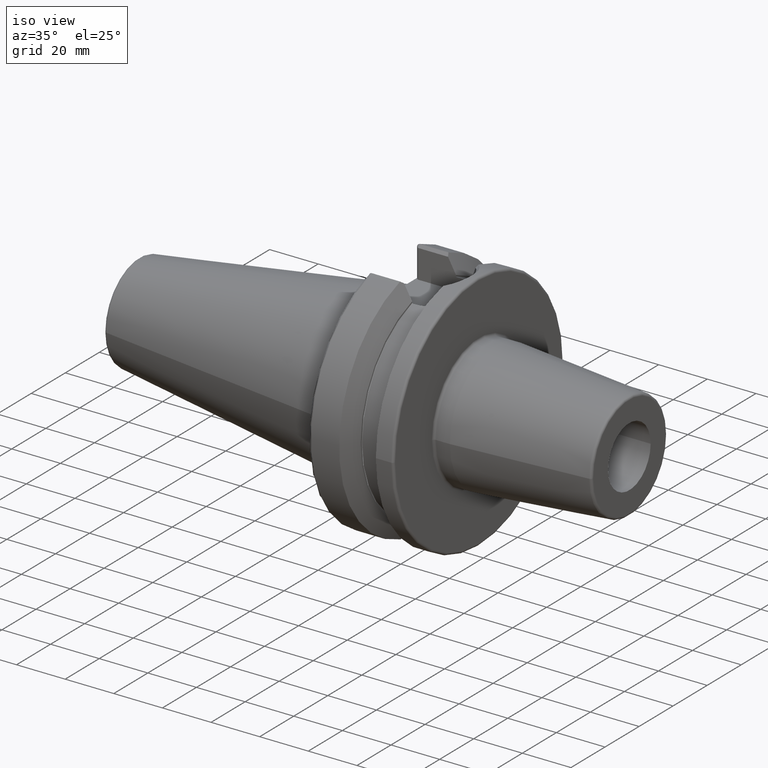
[diagram: clean part render]
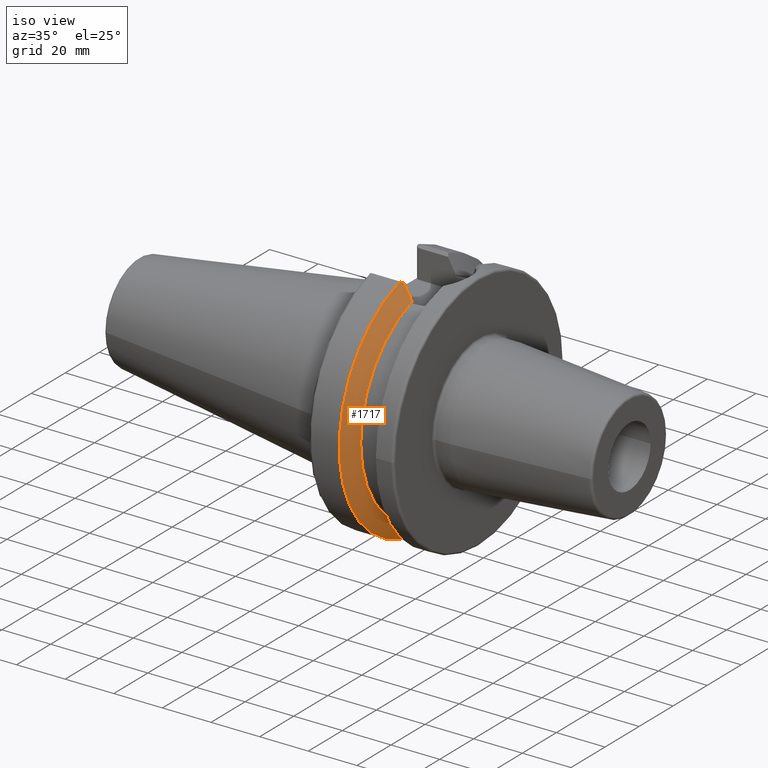
[diagram: same view with one face highlighted and labeled with its STEP entity id]
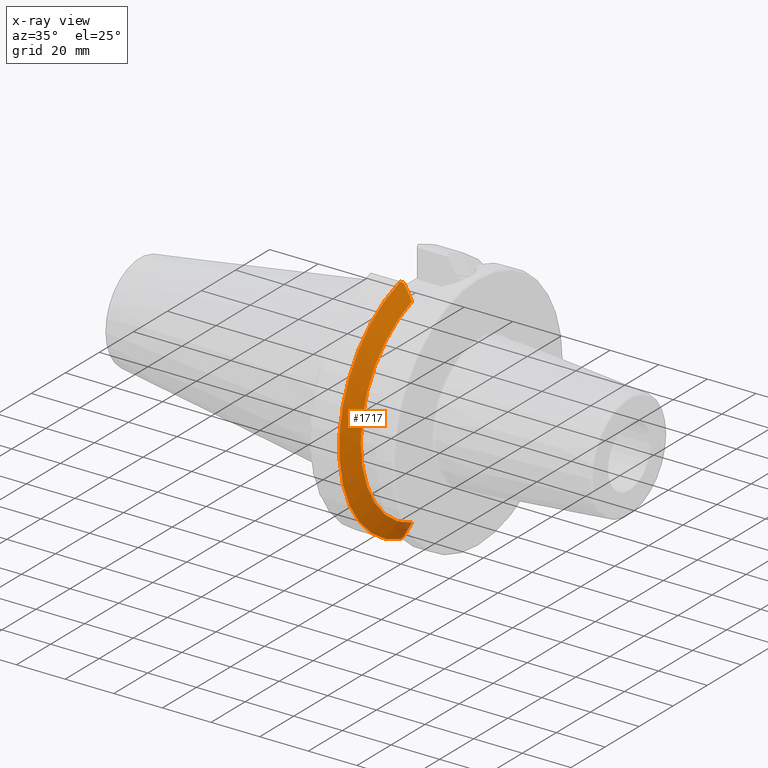
[diagram: x-ray of the same camera — body ghosted, the highlighted face saturated]
A machine part, iso view. The second image highlights one B-rep face of the part: STEP entity #1717.
The next image is the same camera in x-ray: the body ghosted, the highlighted face saturated — about 3% of this face is hidden behind the body in this view.
In plain terms, the highlighted conical surface has half-angle 60 deg.
Its self-contained STEP definition (entity closure, byte-faithful):
#204=CARTESIAN_POINT('',(1.96625E1,0.E0,0.E0));
#205=DIRECTION('',(1.E0,0.E0,0.E0));
#206=DIRECTION('',(0.E0,-2.995626091154E-1,9.540766443111E-1));
#207=AXIS2_PLACEMENT_3D('',#204,#205,#206);
#209=CARTESIAN_POINT('',(1.566933176383E1,0.E0,0.E0));
#210=DIRECTION('',(1.E0,0.E0,0.E0));
#211=DIRECTION('',(0.E0,-2.837968869610E-1,9.588844179312E-1));
#212=AXIS2_PLACEMENT_3D('',#209,#210,#211);
#285=CARTESIAN_POINT('',(1.566933176383E1,-1.386327333875E1,-4.802665727057E1));
#286=CARTESIAN_POINT('',(1.576320934287E1,-1.370067260214E1,-4.790435382082E1));
#287=CARTESIAN_POINT('',(1.594902007039E1,-1.337794118947E1,-4.766160482756E1));
#288=CARTESIAN_POINT('',(1.613095630502E1,-1.306015522703E1,-4.742257565524E1));
#289=CARTESIAN_POINT('',(1.622095963665E1,-1.29025E1,-4.730399207105E1));
#332=CARTESIAN_POINT('',(1.96625E1,-1.29025E1,-4.109315892118E1));
#333=CARTESIAN_POINT('',(1.930371923002E1,-1.29025E1,-4.174449707739E1));
#334=CARTESIAN_POINT('',(1.857040869022E1,-1.29025E1,-4.307298282769E1));
#335=CARTESIAN_POINT('',(1.742403081668E1,-1.29025E1,-4.514175024416E1));
#336=CARTESIAN_POINT('',(1.662730270625E1,-1.29025E1,-4.657447448688E1));
#337=CARTESIAN_POINT('',(1.622095963665E1,-1.29025E1,-4.730399207105E1));
#533=CARTESIAN_POINT('',(1.640508297825E1,-1.29025E1,4.697335042340E1));
#534=CARTESIAN_POINT('',(1.678800997375E1,-1.29025E1,4.628553610571E1));
#535=CARTESIAN_POINT('',(1.753988026520E1,-1.29025E1,4.493290409157E1));
#536=CARTESIAN_POINT('',(1.862508060803E1,-1.29025E1,4.297399674455E1));
#537=CARTESIAN_POINT('',(1.932130614689E1,-1.29025E1,4.171256941858E1));
#538=CARTESIAN_POINT('',(1.96625E1,-1.29025E1,4.109315892118E1));
#561=CARTESIAN_POINT('',(1.640508297825E1,-1.29025E1,4.697335042340E1));
#562=CARTESIAN_POINT('',(1.628591605470E1,-1.311202428533E1,4.712984680879E1));
#563=CARTESIAN_POINT('',(1.604413623418E1,-1.353551919472E1,4.744616060719E1));
#564=CARTESIAN_POINT('',(1.579542715791E1,-1.396789325780E1,4.776910635976E1));
#565=CARTESIAN_POINT('',(1.566933176383E1,-1.418629688696E1,4.793223484134E1));
#1220=CARTESIAN_POINT('',(1.96625E1,-1.29025E1,4.109315892118E1));
#1221=CARTESIAN_POINT('',(1.96625E1,-1.29025E1,-4.109315892118E1));
#1222=VERTEX_POINT('',#1220);
#1223=VERTEX_POINT('',#1221);
#1327=VERTEX_POINT('',#533);
#1335=VERTEX_POINT('',#337);
#1338=CARTESIAN_POINT('',(1.566933176383E1,-1.418629688696E1,4.793223484134E1));
#1339=CARTESIAN_POINT('',(1.566933176383E1,-1.386327333875E1,
-4.802665727057E1));
#1340=VERTEX_POINT('',#1338);
#1341=VERTEX_POINT('',#1339);
#1699=CARTESIAN_POINT('',(1.766591588191E1,0.E0,0.E0));
#1700=DIRECTION('',(-1.E0,0.E0,0.E0));
#1701=DIRECTION('',(0.E0,1.E0,0.E0));
#1702=AXIS2_PLACEMENT_3D('',#1699,#1700,#1701);
#1703=CONICAL_SURFACE('',#1702,4.652931486589E1,6.E1);
#1704=ORIENTED_EDGE('',*,*,#1670,.T.);
#1706=ORIENTED_EDGE('',*,*,#1705,.T.);
#1708=ORIENTED_EDGE('',*,*,#1707,.F.);
#1710=ORIENTED_EDGE('',*,*,#1709,.F.);
#1712=ORIENTED_EDGE('',*,*,#1711,.F.);
#1714=ORIENTED_EDGE('',*,*,#1713,.T.);
#1715=EDGE_LOOP('',(#1704,#1706,#1708,#1710,#1712,#1714));
#1716=FACE_OUTER_BOUND('',#1715,.F.);
#1717=ADVANCED_FACE('',(#1716),#1703,.T.);
#208=CIRCLE('',#207,4.307112973177E1);
#213=CIRCLE('',#212,4.99875E1);
#290=B_SPLINE_CURVE_WITH_KNOTS('',3,(#285,#286,#287,#288,#289),.UNSPECIFIED.,
.F.,.F.,(4,1,4),(0.E0,5.E-1,1.E0),.UNSPECIFIED.);
#338=B_SPLINE_CURVE_WITH_KNOTS('',3,(#332,#333,#334,#335,#336,#337),
.UNSPECIFIED.,.F.,.F.,(4,1,1,4),(0.E0,3.333333333333E-1,6.666666666667E-1,1.E0),
.UNSPECIFIED.);
#539=B_SPLINE_CURVE_WITH_KNOTS('',3,(#533,#534,#535,#536,#537,#538),
.UNSPECIFIED.,.F.,.F.,(4,1,1,4),(0.E0,3.333333333333E-1,6.666666666667E-1,1.E0),
.UNSPECIFIED.);
#566=B_SPLINE_CURVE_WITH_KNOTS('',3,(#561,#562,#563,#564,#565),.UNSPECIFIED.,
.F.,.F.,(4,1,4),(0.E0,5.E-1,1.E0),.UNSPECIFIED.);
#1670=EDGE_CURVE('',#1222,#1223,#208,.T.);
#1705=EDGE_CURVE('',#1223,#1335,#338,.T.);
#1707=EDGE_CURVE('',#1341,#1335,#290,.T.);
#1709=EDGE_CURVE('',#1340,#1341,#213,.T.);
#1711=EDGE_CURVE('',#1327,#1340,#566,.T.);
#1713=EDGE_CURVE('',#1327,#1222,#539,.T.);